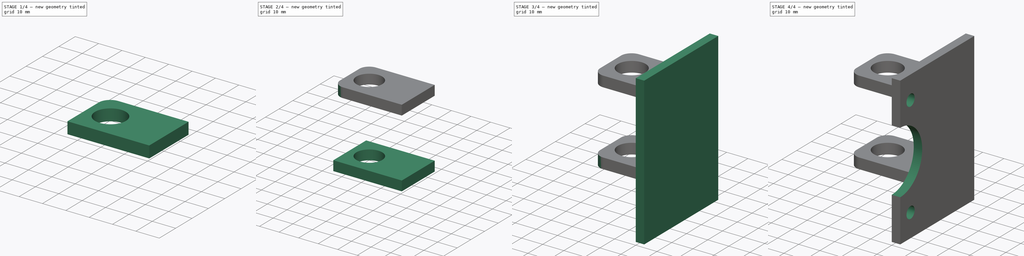
[diagram: build sequence overview — one tinted view per stage of 4, left to right]
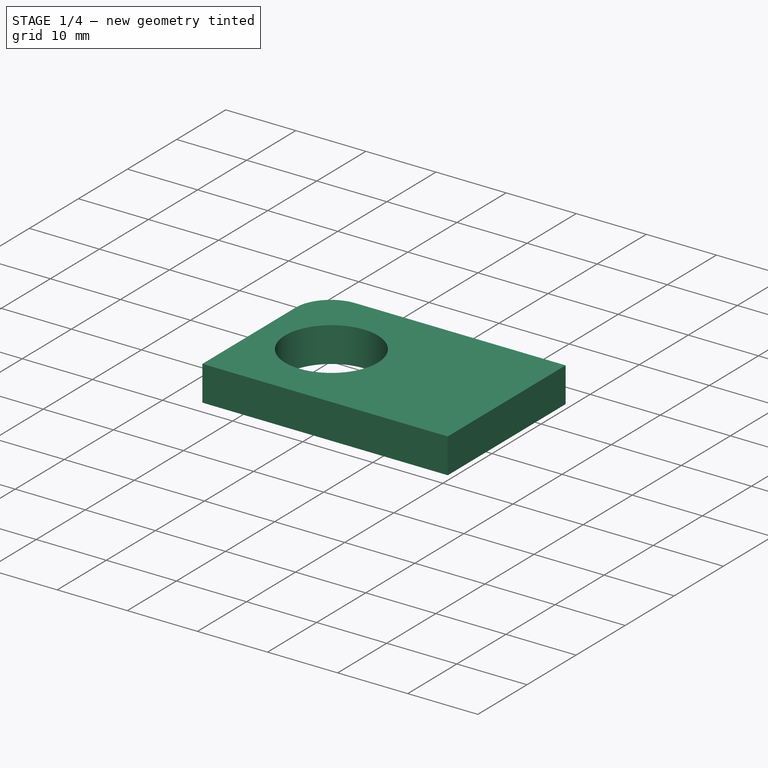
[diagram: stage 1 of 4 — iso view after this stage's code; geometry added in this stage tinted green]
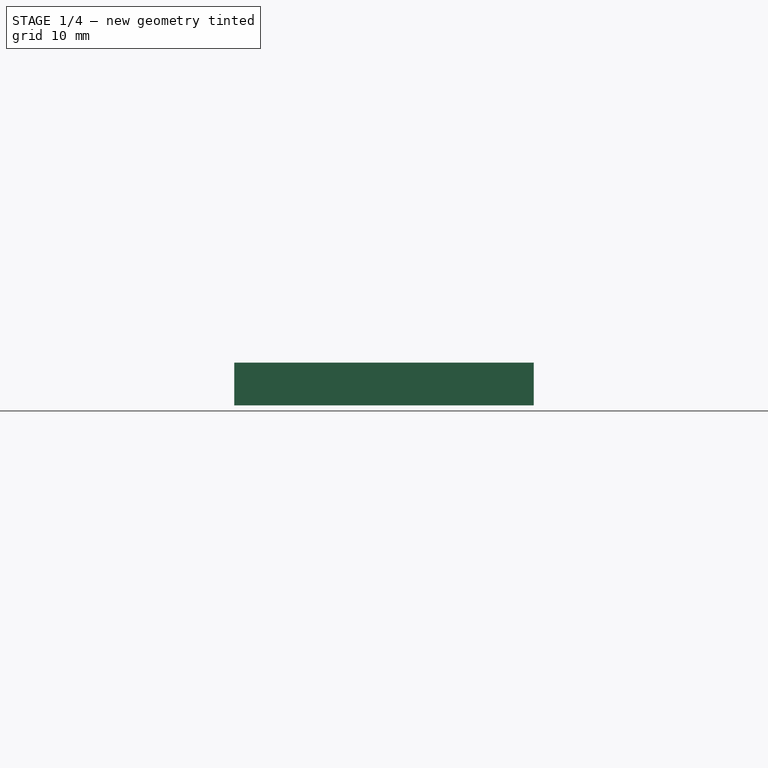
[diagram: stage 1 of 4 — front view after this stage's code; geometry added in this stage tinted green]
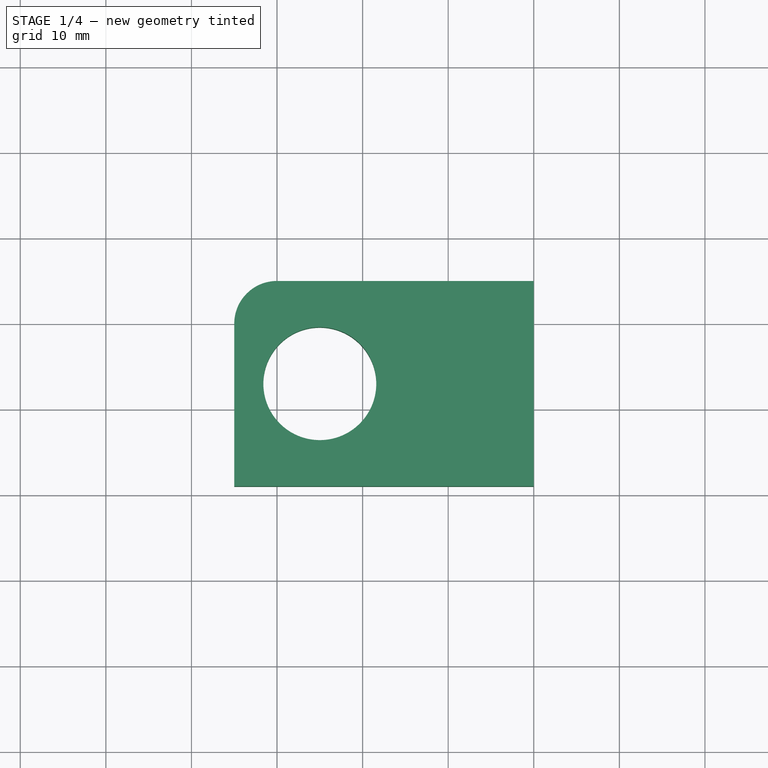
[diagram: stage 1 of 4 — top view after this stage's code; geometry added in this stage tinted green]
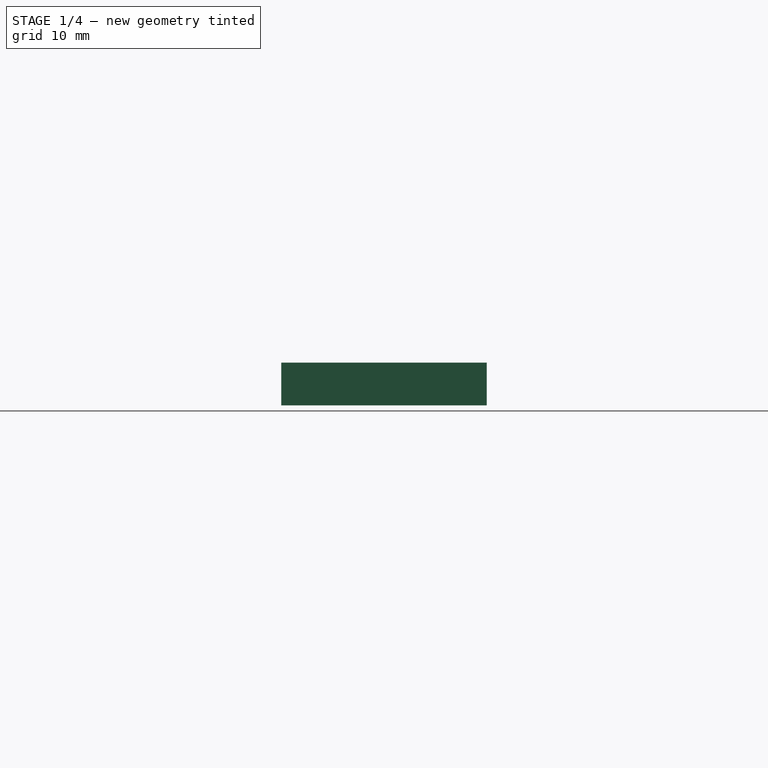
[diagram: stage 1 of 4 — right view after this stage's code; geometry added in this stage tinted green]
FCSTD DOCUMENT  (FreeCAD 0.17R13541 (Git))
Label: LimitSwitchHolder_z-axis_chainholder
License: All rights reserved
LicenseURL: http://en.wikipedia.org/wiki/All_rights_reserved
objects: Sketcher::SketchObject×7, PartDesign::Hole×4, PartDesign::Fillet×4, PartDesign::Pad×3, PartDesign::Body×3, PartDesign::ShapeBinder×2, PartDesign::Boolean×1
note: 31 computed .brp shape members not serialized (recipe doc carries the construction recipe); baked Part::Feature solids carry a one-line shape summary decoded from their .brp

FEATURE [PartDesign::ShapeBinder] CopyHole001
  Placement = pos=(0,0,0) rot=(0.57735,0.57735,0.57735;2.0944rad)
FEATURE [Sketcher::SketchObject] Sketch003
  MapMode = 5
  Placement = pos=(0,0,0) rot=(-0.57735,-0.57735,0.57735;2.0944rad)
  Support = -> [CopyHole001]
  sketch-geometry (4):
    g0: LineSegment StartX=51 StartY=-50 StartZ=0 EndX=75 EndY=-50 EndZ=0
    g1: LineSegment StartX=75 StartY=-50 StartZ=0 EndX=75 EndY=-55 EndZ=0
    g2: LineSegment StartX=75 StartY=-55 StartZ=0 EndX=51 EndY=-55 EndZ=0
    g3: LineSegment StartX=51 StartY=-55 StartZ=0 EndX=51 EndY=-50 EndZ=0
  constraints (12):
    c: Coincident(g0,g1)
    c: Coincident(g1,g2)
    c: Coincident(g2,g3)
    c: Coincident(g3,g0)
    c: Horizontal(g0)
    c: Horizontal(g2)
    c: Vertical(g1)
    c: Vertical(g3)
    c: DistanceY(g0,g-1) = 50
    c: DistanceY(g1,g1) = 5
    c: DistanceX(g0,g0) = 24
    c: DistanceX(g-1,g0) = 51
FEATURE [PartDesign::Pad] Pad002
  Length = 35
  Length2 = 100
  Placement = pos=(0,0,0) rot=(0.57735,0.57735,0.57735;2.0944rad)
  Profile = -> Sketch003
  Type = 0
FEATURE [Sketcher::SketchObject] Sketch004
  MapMode = 5
  Placement = pos=(0,0,55) rot=(0,0,-1;1.5708rad)
  Support = -> [Pad002]
  sketch-geometry (1):
    g0: Circle CenterX=-63 CenterY=-25 CenterZ=0 NormalX=0 NormalY=0 NormalZ=1 AngleXU=0 Radius=5.49974
  constraints (2):
    c: DistanceX(g0,g-1) = 63
    c: DistanceY(g0,g-1) = 25
FEATURE [PartDesign::Hole] Hole001
  BaseFeature = -> Pad002
  Depth = 25
  DepthType = 1
  Diameter = 13.2
  DrillPoint = 1
  DrillPointAngle = 118
  HoleCutCountersinkAngle = 90
  HoleCutDepth = 0
  HoleCutDiameter = 12
  HoleCutType = 0
  ModelActualThread = false
  Placement = pos=(0,0,0) rot=(0.57735,0.57735,0.57735;2.0944rad)
  Profile = -> Sketch004
  Tapered = false
  TaperedAngle = 90
  ThreadAngle = 0
  ThreadClass = 0
  ThreadCutOffInner = 0
  ThreadCutOffOuter = 0
  ThreadDirection = 0
  ThreadFit = 0
  ThreadPitch = 0
  ThreadSize = 10
  ThreadType = 1
  Threaded = false
FEATURE [PartDesign::Body] Body001
  Group = -> [CopyHole,Sketch002,Pad001,Sketch005,Hole002,Fillet,Fillet001]
  Origin = -> Origin001
  Tip = -> Fillet001
FEATURE [PartDesign::Fillet] Fillet002
  Base = -> Hole001 [Edge11]
  BaseFeature = -> Hole001
  Placement = pos=(0,0,0) rot=(0.57735,0.57735,0.57735;2.0944rad)
  Radius = 5
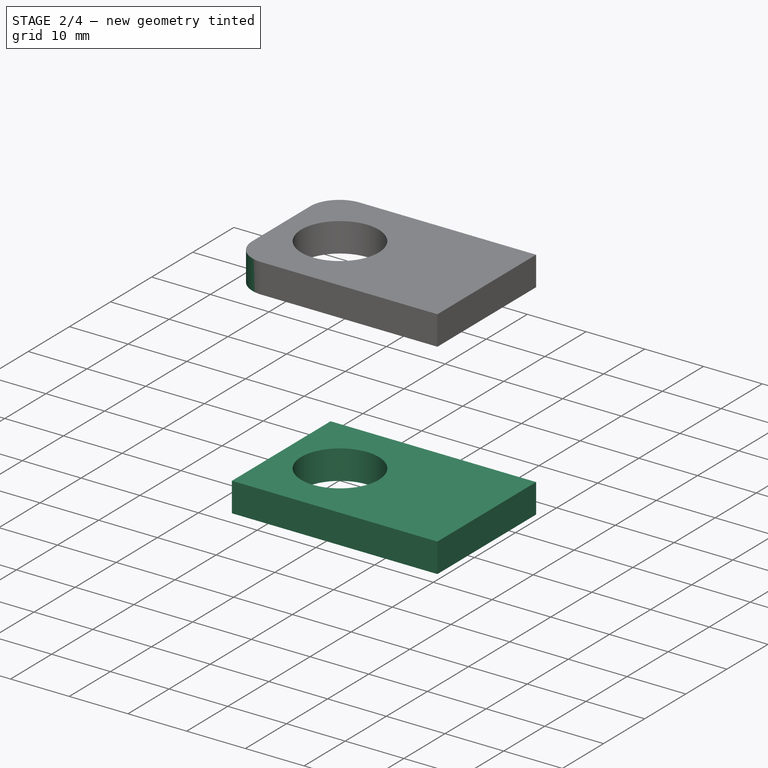
[diagram: stage 2 of 4 — iso view after this stage's code; geometry added in this stage tinted green]
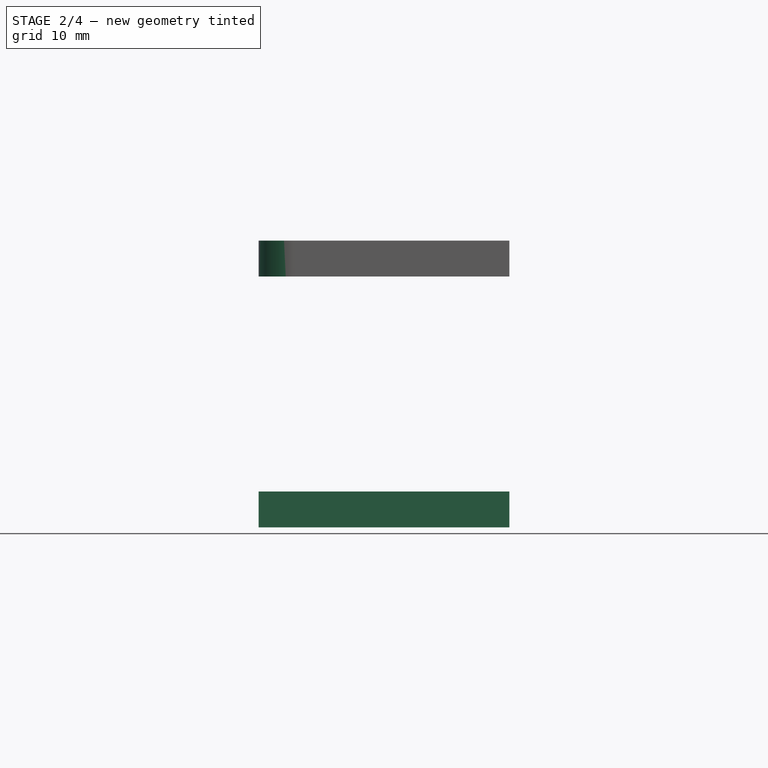
[diagram: stage 2 of 4 — front view after this stage's code; geometry added in this stage tinted green]
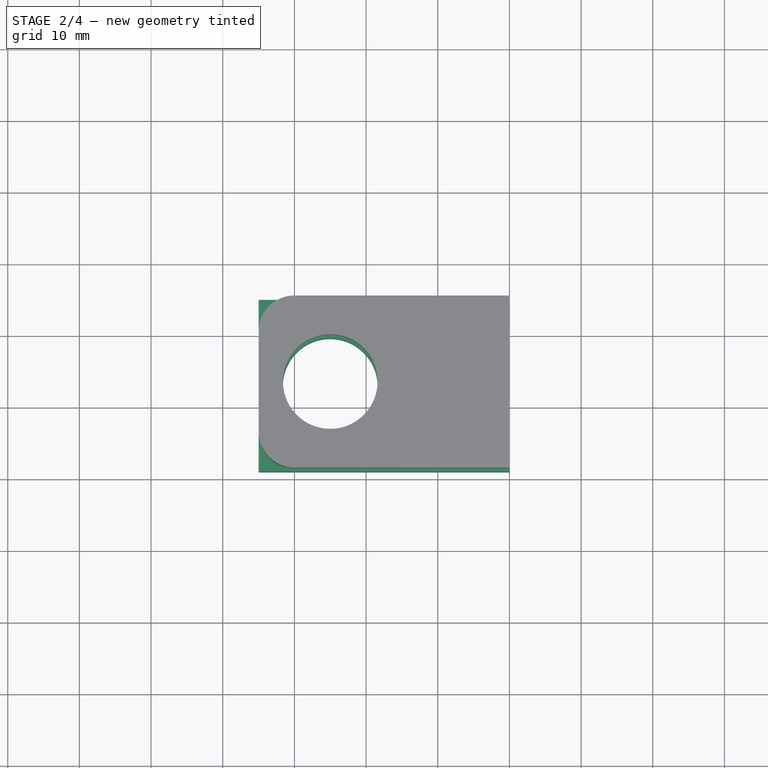
[diagram: stage 2 of 4 — top view after this stage's code; geometry added in this stage tinted green]
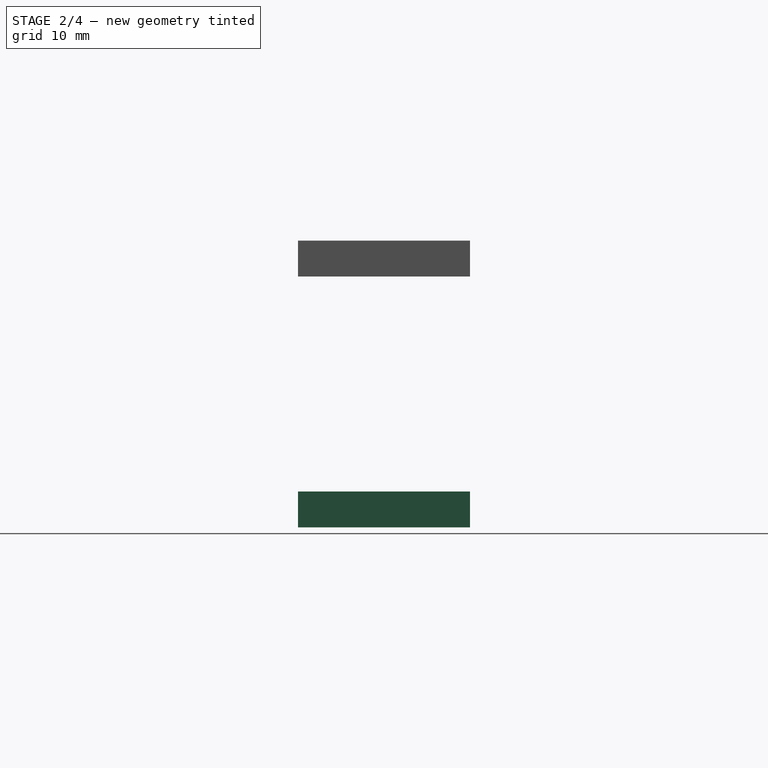
[diagram: stage 2 of 4 — right view after this stage's code; geometry added in this stage tinted green]
FEATURE [PartDesign::ShapeBinder] CopyHole
  Placement = pos=(0,0,0) rot=(0.57735,0.57735,0.57735;2.0944rad)
FEATURE [Sketcher::SketchObject] Sketch002
  MapMode = 5
  Placement = pos=(0,0,0) rot=(-0.57735,-0.57735,0.57735;2.0944rad)
  Support = -> [CopyHole]
  sketch-geometry (4):
    g0: LineSegment StartX=51 StartY=-15 StartZ=0 EndX=75 EndY=-15 EndZ=0
    g1: LineSegment StartX=75 StartY=-15 StartZ=0 EndX=75 EndY=-20 EndZ=0
    g2: LineSegment StartX=75 StartY=-20 StartZ=0 EndX=51 EndY=-20 EndZ=0
    g3: LineSegment StartX=51 StartY=-20 StartZ=0 EndX=51 EndY=-15 EndZ=0
  constraints (12):
    c: Coincident(g0,g1)
    c: Coincident(g1,g2)
    c: Coincident(g2,g3)
    c: Coincident(g3,g0)
    c: Horizontal(g0)
    c: Horizontal(g2)
    c: Vertical(g1)
    c: Vertical(g3)
    c: DistanceY(g0,g-1) = 15
    c: DistanceY(g3,g3) = 5
    c: DistanceX(g2,g2) = 24
    c: DistanceX(g-1,g0) = 51
FEATURE [PartDesign::Pad] Pad001
  Length = 35
  Length2 = 100
  Placement = pos=(0,0,0) rot=(0.57735,0.57735,0.57735;2.0944rad)
  Profile = -> Sketch002
  Type = 0
FEATURE [Sketcher::SketchObject] Sketch005
  MapMode = 5
  Placement = pos=(0,0,20) rot=(0,0,-1;1.5708rad)
  Support = -> [Pad001]
  sketch-geometry (1):
    g0: Circle CenterX=-63 CenterY=-25 CenterZ=0 NormalX=0 NormalY=0 NormalZ=1 AngleXU=0 Radius=5.3446
  constraints (2):
    c: DistanceX(g0,g-1) = 63
    c: DistanceY(g0,g-1) = 25
FEATURE [PartDesign::Hole] Hole002
  BaseFeature = -> Pad001
  Depth = 25
  DepthType = 1
  Diameter = 13.2
  DrillPoint = 1
  DrillPointAngle = 118
  HoleCutCountersinkAngle = 90
  HoleCutDepth = 0
  HoleCutDiameter = 12
  HoleCutType = 0
  ModelActualThread = false
  Placement = pos=(0,0,0) rot=(0.57735,0.57735,0.57735;2.0944rad)
  Profile = -> Sketch005
  Tapered = false
  TaperedAngle = 90
  ThreadAngle = 0
  ThreadClass = 0
  ThreadCutOffInner = 0
  ThreadCutOffOuter = 0
  ThreadDirection = 0
  ThreadFit = 0
  ThreadPitch = 0
  ThreadSize = 10
  ThreadType = 1
  Threaded = false
FEATURE [PartDesign::Fillet] Fillet003
  Base = -> Fillet002 [Edge8]
  BaseFeature = -> Fillet002
  Placement = pos=(0,0,0) rot=(0.57735,0.57735,0.57735;2.0944rad)
  Radius = 5
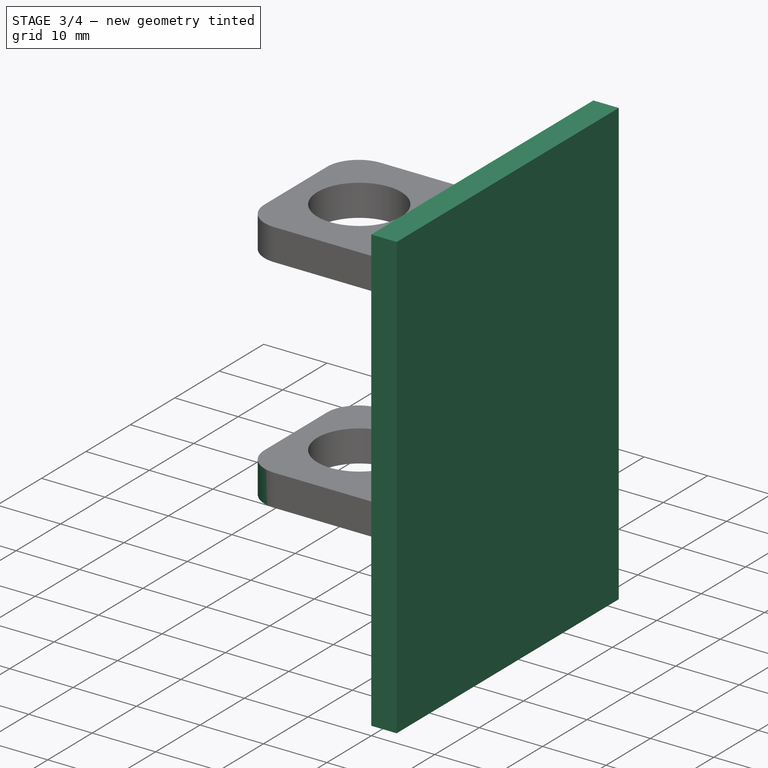
[diagram: stage 3 of 4 — iso view after this stage's code; geometry added in this stage tinted green]
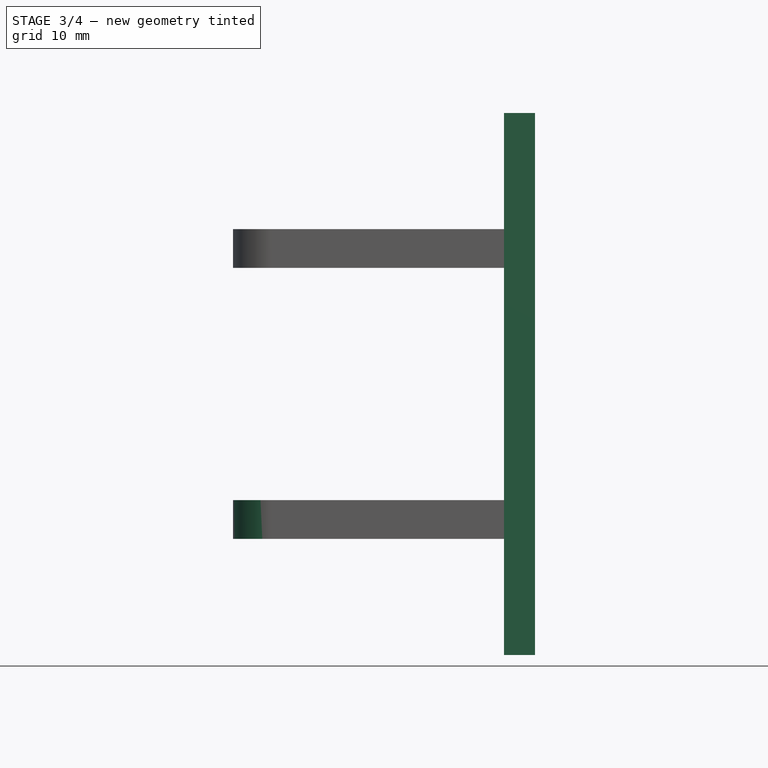
[diagram: stage 3 of 4 — front view after this stage's code; geometry added in this stage tinted green]
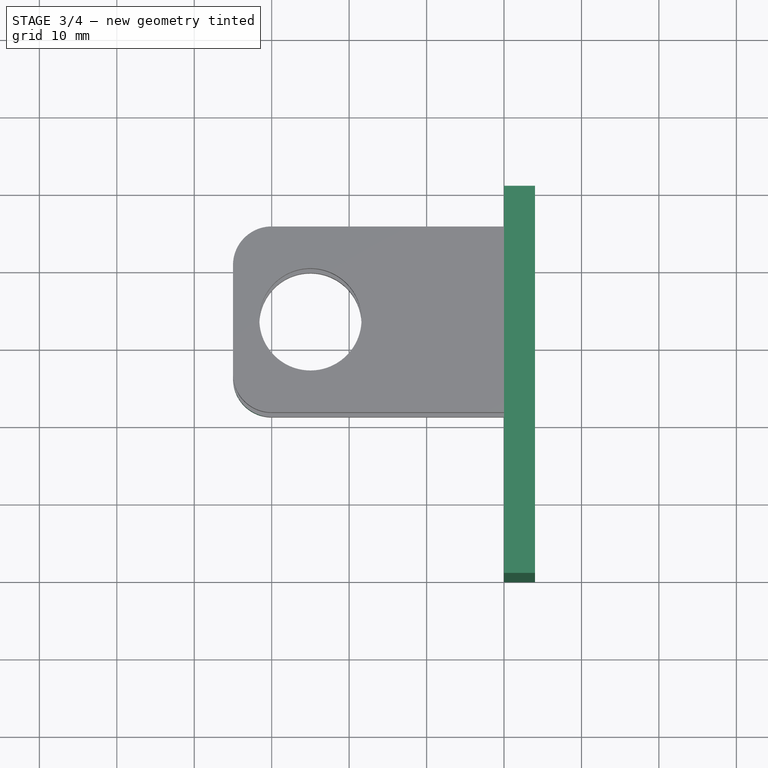
[diagram: stage 3 of 4 — top view after this stage's code; geometry added in this stage tinted green]
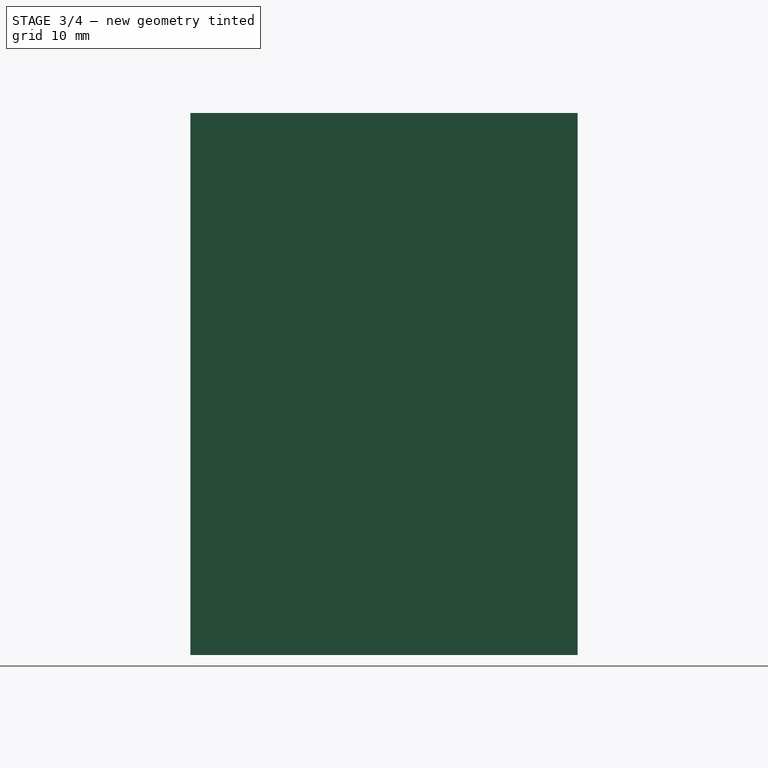
[diagram: stage 3 of 4 — right view after this stage's code; geometry added in this stage tinted green]
FEATURE [Sketcher::SketchObject] Sketch
  MapMode = 5
  Placement = pos=(0,0,0) rot=(0.57735,0.57735,0.57735;2.0944rad)
  Support = -> [YZ_Plane]
  sketch-geometry (4):
    g0: LineSegment StartX=30 StartY=70 StartZ=0 EndX=80 EndY=70 EndZ=0
    g1: LineSegment StartX=80 StartY=70 StartZ=0 EndX=80 EndY=0 EndZ=0
    g2: LineSegment StartX=80 StartY=0 StartZ=0 EndX=30 EndY=0 EndZ=0
    g3: LineSegment StartX=30 StartY=0 StartZ=0 EndX=30 EndY=70 EndZ=0
  constraints (12):
    c: Coincident(g0,g1)
    c: Coincident(g1,g2)
    c: Coincident(g2,g3)
    c: Coincident(g3,g0)
    c: Horizontal(g0)
    c: Horizontal(g2)
    c: Vertical(g1)
    c: Vertical(g3)
    c: PointOnObject(g1,g-1)
    c: DistanceX(g2,g2) = 50
    c: DistanceY(g3,g3) = 70
    c: DistanceX(g-1,g2) = 30
FEATURE [PartDesign::Pad] Pad
  Length = 4
  Length2 = 100
  Placement = pos=(0,0,0) rot=(0.57735,0.57735,0.57735;2.0944rad)
  Profile = -> Sketch
  Type = 0
FEATURE [PartDesign::Fillet] Fillet
  Base = -> Hole002 [Edge11]
  BaseFeature = -> Hole002
  Placement = pos=(0,0,0) rot=(0.57735,0.57735,0.57735;2.0944rad)
  Radius = 5
FEATURE [PartDesign::Fillet] Fillet001
  Base = -> Fillet [Edge8]
  BaseFeature = -> Fillet
  Placement = pos=(0,0,0) rot=(0.57735,0.57735,0.57735;2.0944rad)
  Radius = 5
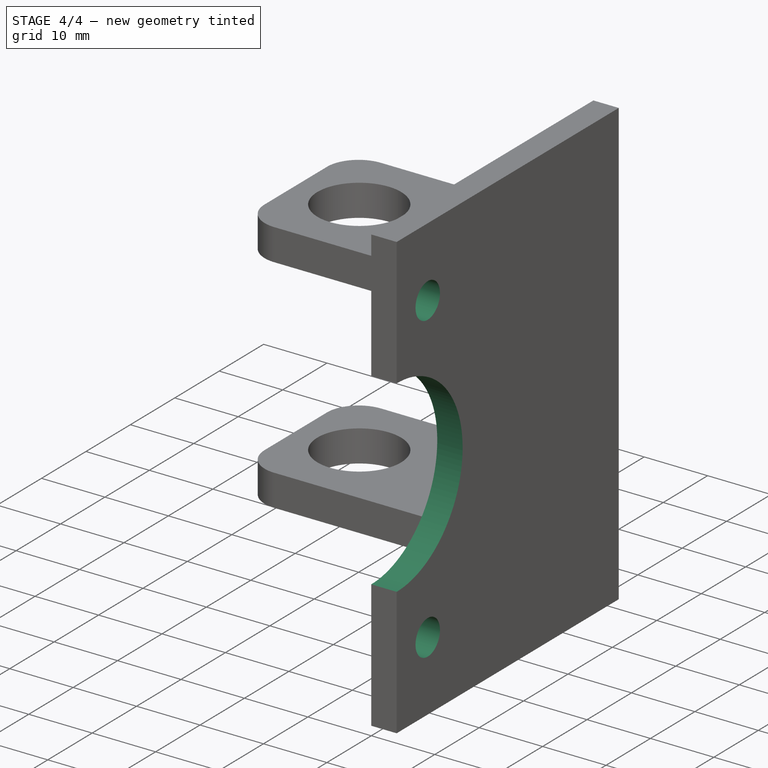
[diagram: stage 4 of 4 — iso view after this stage's code; geometry added in this stage tinted green]
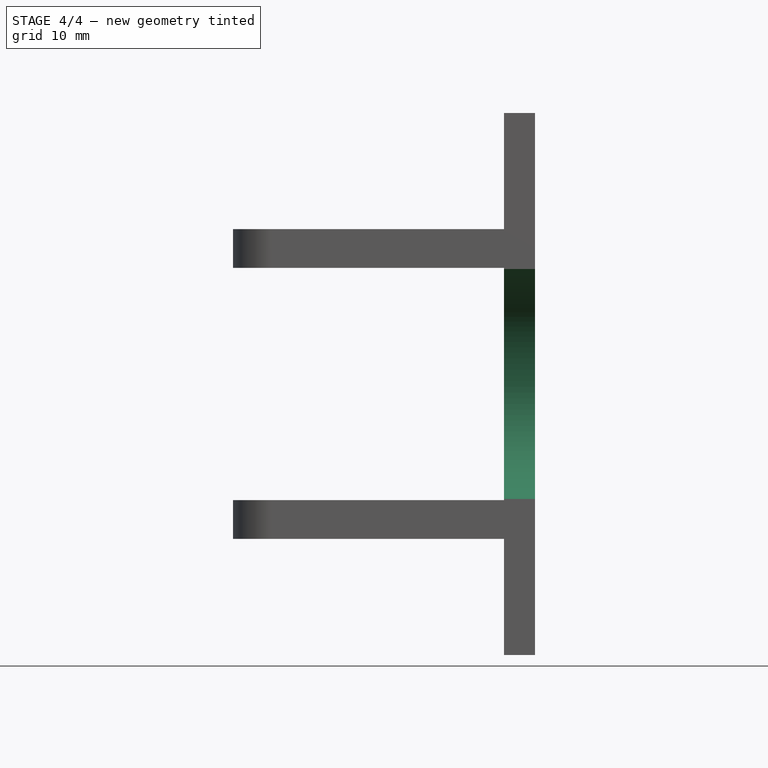
[diagram: stage 4 of 4 — front view after this stage's code; geometry added in this stage tinted green]
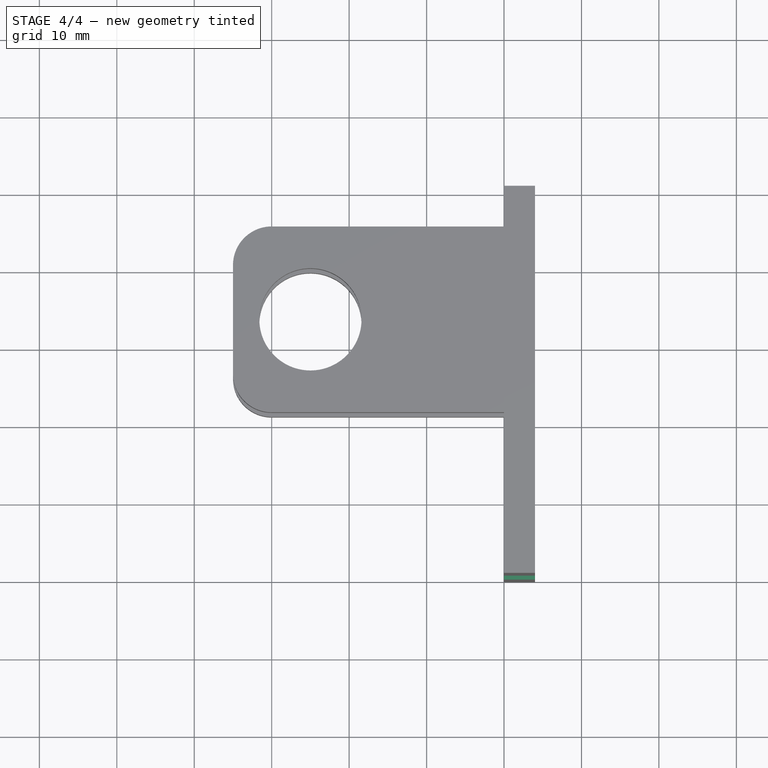
[diagram: stage 4 of 4 — top view after this stage's code; geometry added in this stage tinted green]
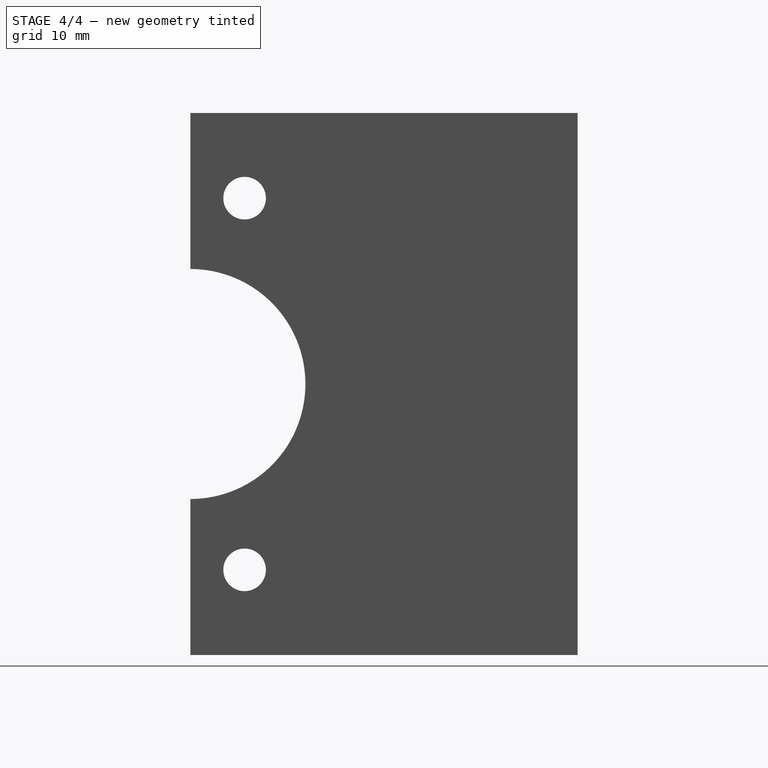
[diagram: stage 4 of 4 — right view after this stage's code; geometry added in this stage tinted green]
FEATURE [Sketcher::SketchObject] Sketch001
  MapMode = 5
  Placement = pos=(0,0,0) rot=(0.57735,0.57735,-0.57735;4.18879rad)
  Support = -> [Pad]
  sketch-geometry (2):
    g0: Circle CenterX=37 CenterY=-11 CenterZ=0 NormalX=0 NormalY=0 NormalZ=1 AngleXU=0 Radius=2.4933
    g1: Circle CenterX=37 CenterY=-59 CenterZ=0 NormalX=0 NormalY=0 NormalZ=1 AngleXU=0 Radius=2.12779
  constraints (4):
    c: DistanceY(g0,g-1) = 11
    c: DistanceX(g-1,g0) = 37
    c: Vertical(g1,g0)
    c: DistanceY(g1,g0) = 48
FEATURE [PartDesign::Hole] Hole
  BaseFeature = -> Pad
  Depth = 25
  DepthType = 1
  Diameter = 5.5
  DrillPoint = 1
  DrillPointAngle = 118
  HoleCutCountersinkAngle = 90
  HoleCutDepth = 0
  HoleCutDiameter = 5
  HoleCutType = 0
  ModelActualThread = false
  Placement = pos=(0,0,0) rot=(0.57735,0.57735,0.57735;2.0944rad)
  Profile = -> Sketch001
  Tapered = false
  TaperedAngle = 90
  ThreadAngle = 0
  ThreadClass = 0
  ThreadCutOffInner = 0
  ThreadCutOffOuter = 0
  ThreadDirection = 0
  ThreadFit = 0
  ThreadPitch = 0
  ThreadSize = 6
  ThreadType = 1
  Threaded = false
FEATURE [Sketcher::SketchObject] Sketch006
  MapMode = 5
  Placement = pos=(0,0,0) rot=(-0.57735,-0.57735,0.57735;2.0944rad)
  Support = -> [Hole]
  sketch-geometry (1):
    g0: Circle CenterX=30 CenterY=-35 CenterZ=0 NormalX=0 NormalY=0 NormalZ=1 AngleXU=0 Radius=15
  constraints (3):
    c: DistanceY(g0,g-1) = 35
    c: Radius(g0) = 15
    c: DistanceX(g-1,g0) = 30
FEATURE [PartDesign::Hole] Hole003
  BaseFeature = -> Hole
  Depth = 25
  DepthType = 1
  Diameter = 29.7
  DrillPoint = 1
  DrillPointAngle = 118
  HoleCutCountersinkAngle = 90
  HoleCutDepth = 0
  HoleCutDiameter = 27
  HoleCutType = 0
  ModelActualThread = false
  Placement = pos=(0,0,0) rot=(0.57735,0.57735,0.57735;2.0944rad)
  Profile = -> Sketch006
  Tapered = false
  TaperedAngle = 90
  ThreadAngle = 0
  ThreadClass = 0
  ThreadCutOffInner = 0
  ThreadCutOffOuter = 0
  ThreadDirection = 0
  ThreadFit = 0
  ThreadPitch = 0
  ThreadSize = 16
  ThreadType = 1
  Threaded = false
FEATURE [PartDesign::Body] Body002
  Group = -> [CopyHole001,Sketch003,Pad002,Sketch004,Hole001,Fillet002,Fillet003]
  Origin = -> Origin002
  Tip = -> Fillet003
FEATURE [PartDesign::Boolean] Boolean
  BaseFeature = -> Hole003
  Group = -> [Body002,Body001]
  Type = 0
FEATURE [PartDesign::Body] Body
  Group = -> [Sketch,Pad,Sketch001,Hole,Sketch006,Hole003,Boolean]
  Origin = -> Origin
  Tip = -> Boolean
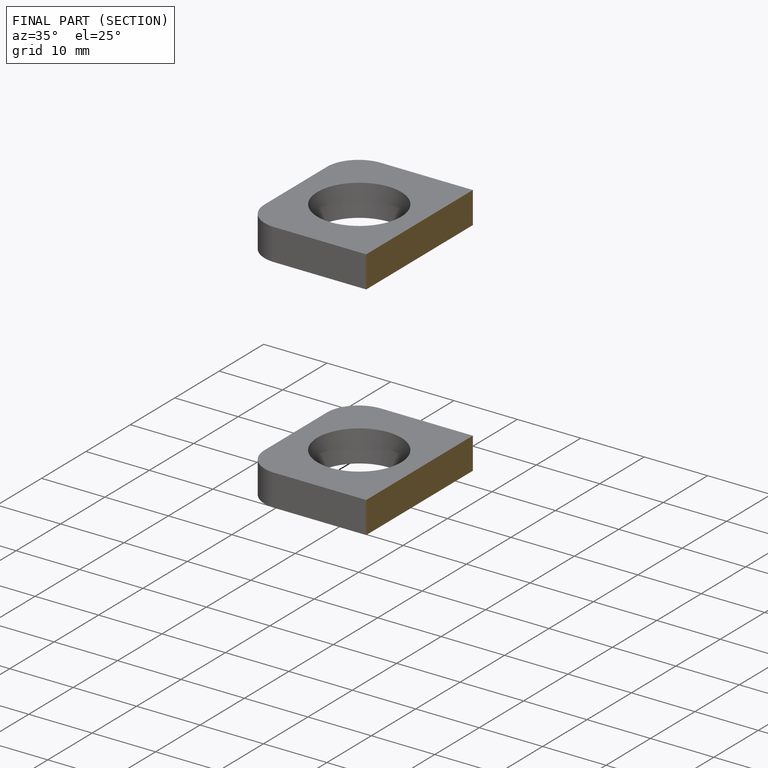
[diagram: finished part — half-section view (interior)]
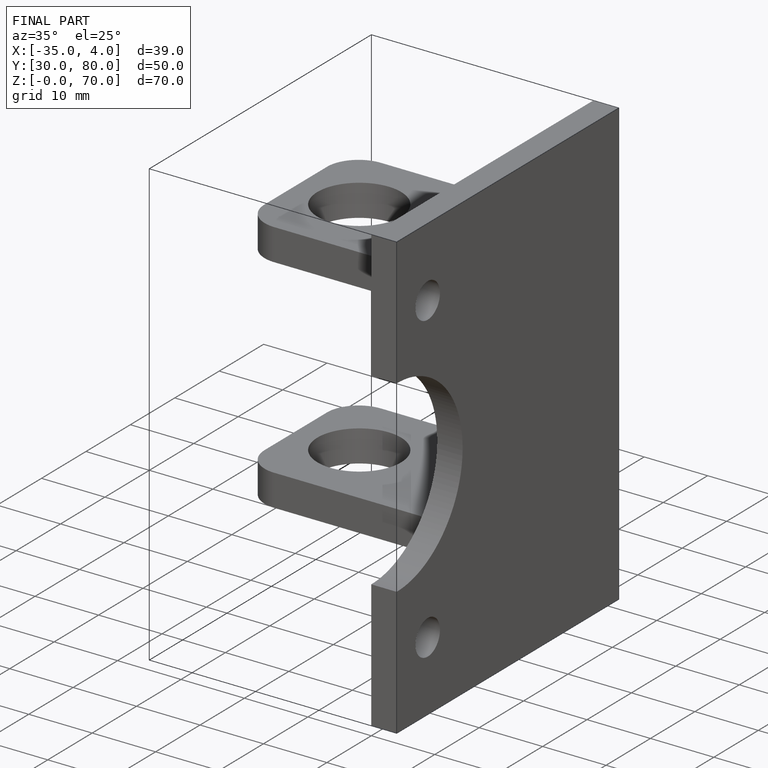
[diagram: finished part — iso view with bounding-box wireframe]
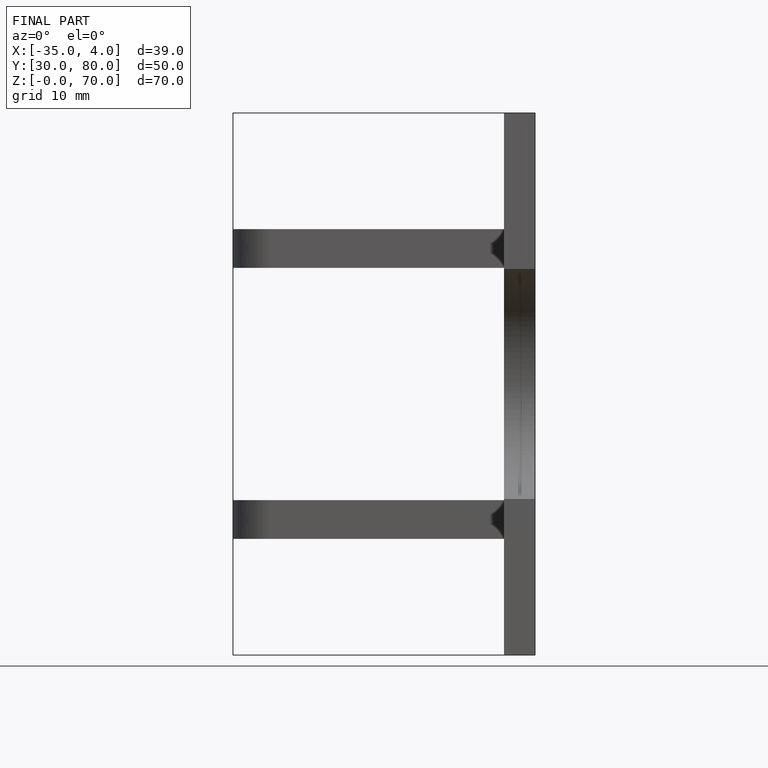
[diagram: finished part — front view with bounding-box wireframe]
